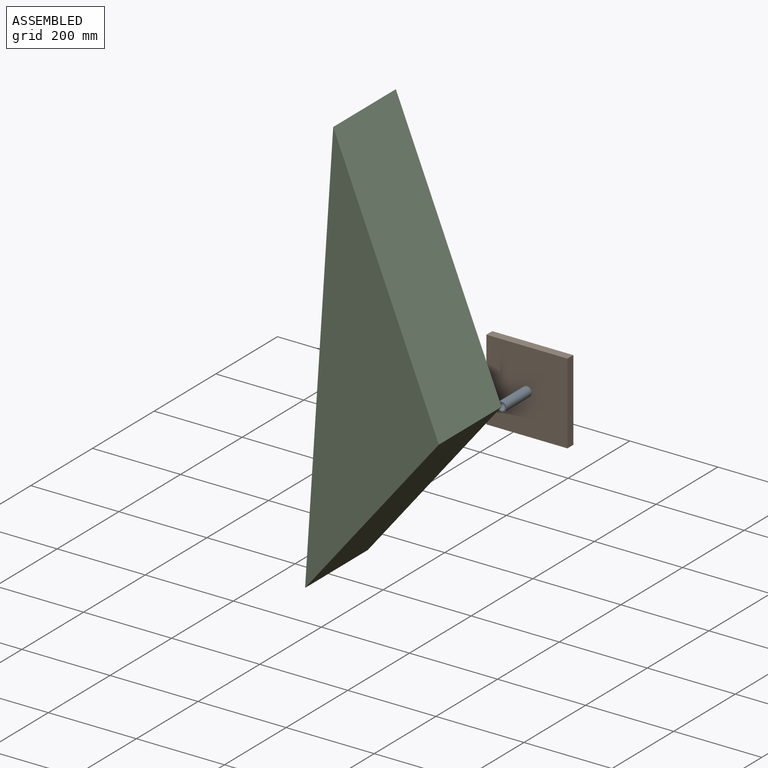
[diagram: assembled view]
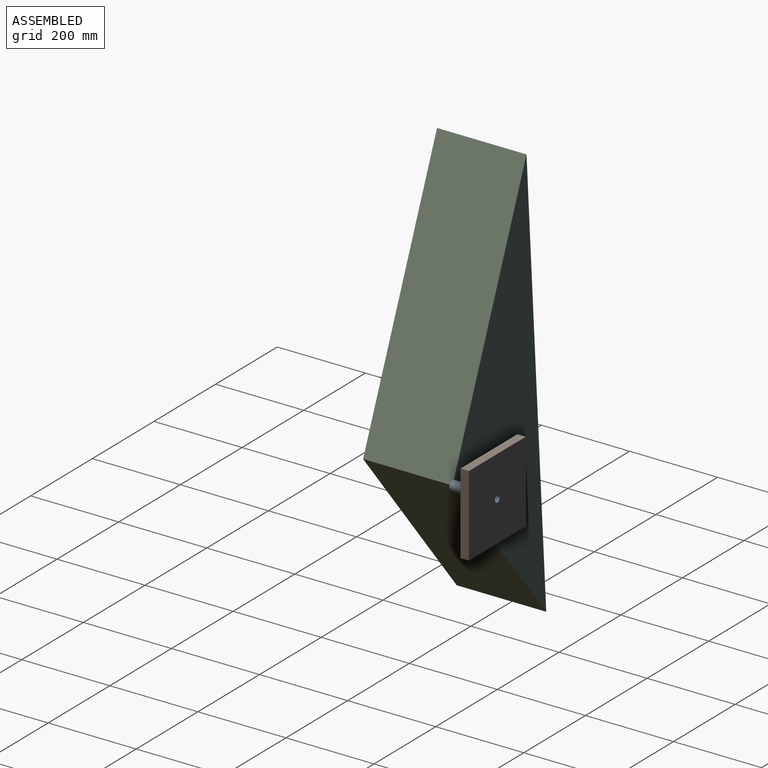
[diagram: assembled view, second angle]
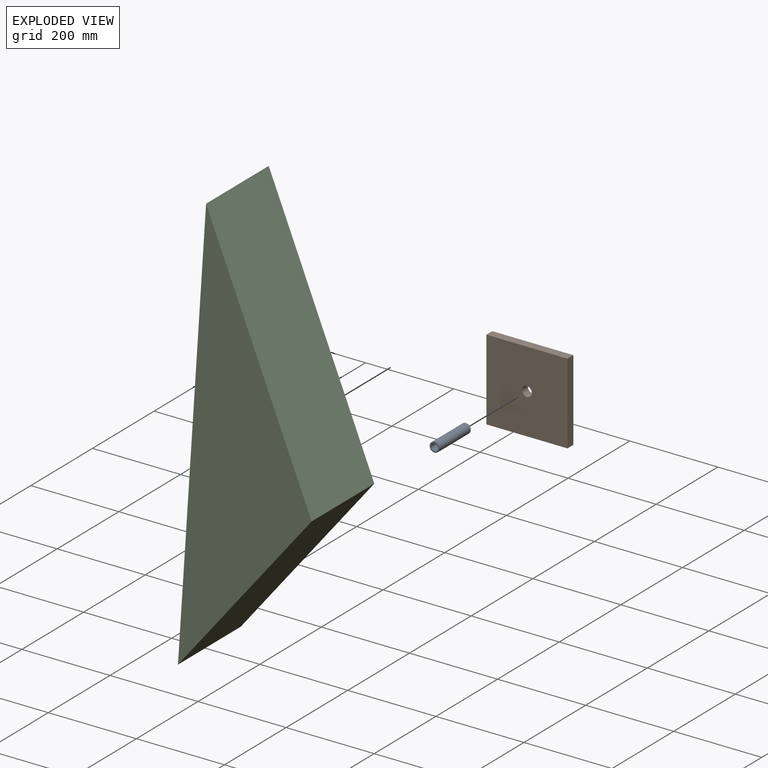
[diagram: exploded view]
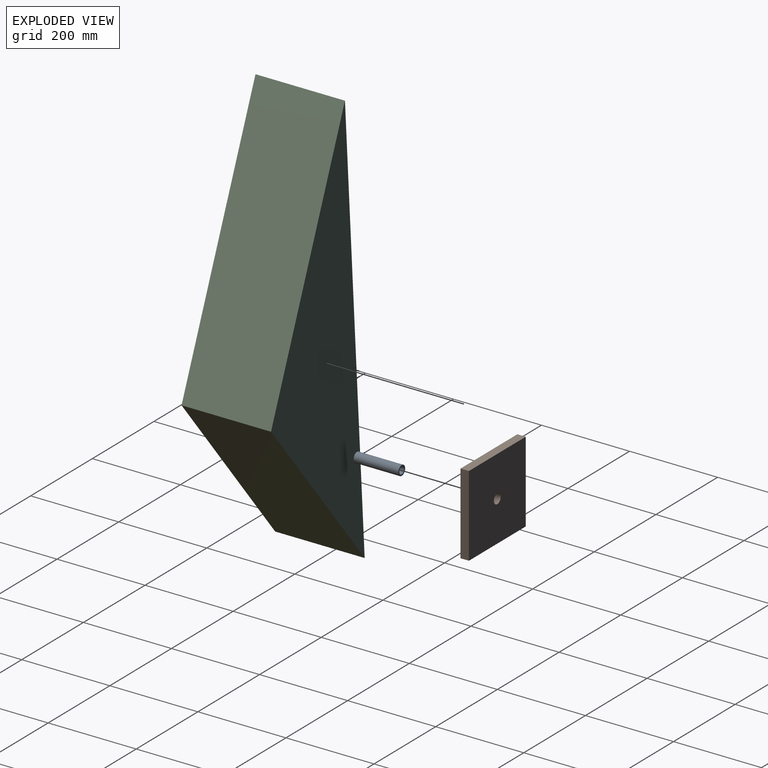
[diagram: exploded view, second angle]
ASSEMBLY  parts=3 mates=2
PART A: 4 faces, bbox 22.2x101.6x22.2 mm
  f0: cylinder r=11.11mm len=101.6mm, axis (0,1,0), area 7093.9mm2, adj f1,f2
  f1: plane 22.23x22.23mm, normal (0,-1,0), area 190mm2, adj f0,f3
  f2: plane 22.23x22.23mm, normal (0,1,0), area 190mm2, adj f0,f3
  f3: cylinder r=7.94mm len=101.6mm, axis (0,-1,0), area 5067.1mm2, adj f1,f2
PART B: 7 faces, bbox 184.2x19.1x184.2 mm
  f0: plane 184.15x19.05mm, normal (-1,0,0), area 3508.1mm2, adj f1,f3,f4,f5
  f1: plane 184.15x19.05mm, normal (0,0,-1), area 3508.1mm2, adj f0,f2,f4,f5
  f2: plane 184.15x19.05mm, normal (1,0,0), area 3508.1mm2, adj f1,f3,f4,f5
  f3: plane 184.15x19.05mm, normal (0,0,1), area 3508.1mm2, adj f0,f2,f4,f5
  f4: plane 184.15x184.15mm, normal (0,-1,0), area 33523.3mm2, adj f0,f1,f2,f3,f6
  f5: plane 184.15x184.15mm, normal (0,1,0), area 33523.3mm2, adj f0,f1,f2,f3,f6
  f6: cylinder r=11.11mm len=22.23mm, axis (0,-1,0), area 1330.1mm2, adj f4,f5
PART C: 5 faces, bbox 788.7x203.2x556.3 mm
  f0: plane 788.74x556.33mm, normal (-0.58,0,0.82), area 196128.6mm2, adj f1,f2,f3,f4
  f1: plane 482.6x203.2mm, normal (0,0,-1), area 98064.3mm2, adj f0,f2,f3,f4
  f2: plane 556.33x306.14mm, normal (0.88,0,-0.48), area 129032mm2, adj f0,f1,f3,f4
  f3: plane 788.74x556.33mm, normal (0,-1,0), area 134242.9mm2, adj f0,f1,f2
  f4: plane 788.74x556.33mm, normal (0,1,0), area 134242.9mm2, adj f0,f1,f2
PLACE A at identity
PLACE B t=(-92.07,0,-92.08)mm
PLACE C rot(axis=(0,-1,0),51deg) t=(-303.66,-101.6,-375.09)mm
MATE fastened B.f6 <-> A.f0  axis (0,1,0) through (0,0,0)mm
MATE revolute C.f4 <-> A.f3  axis (0,1,0) through (0,-101.6,0)mm
